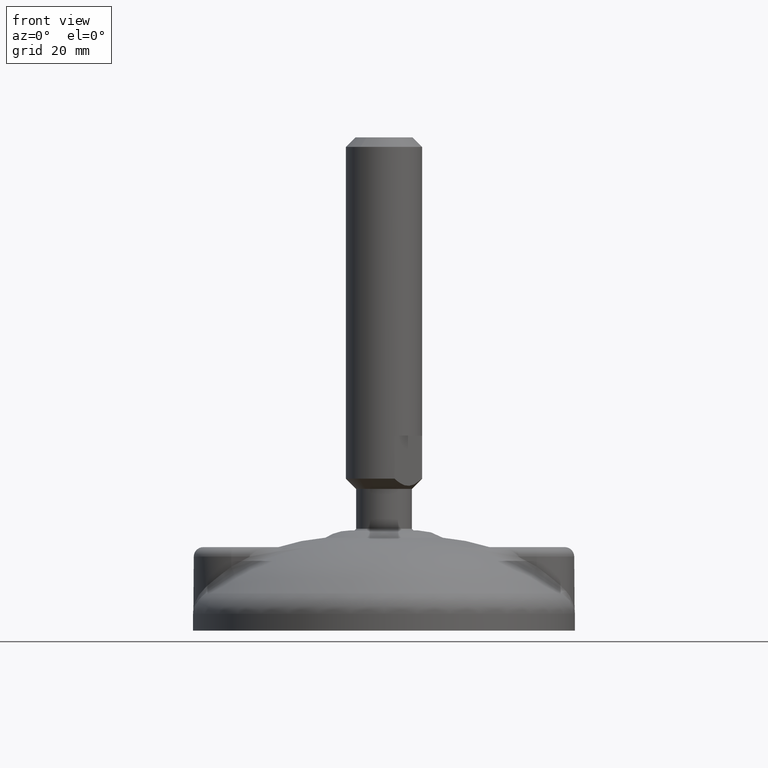
[diagram: clean part render]
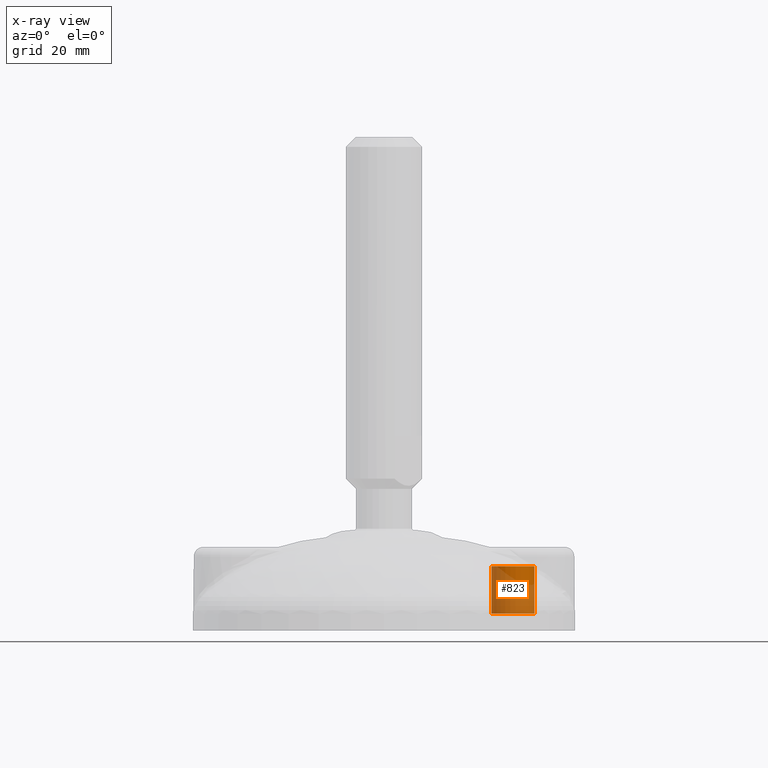
[diagram: x-ray — body ghosted, one internal face saturated and labeled with its STEP entity id]
A machine part, front view, then the same camera in x-ray: the body is ghosted and one INTERNAL B-rep face — a face not visible from any outside direction — is saturated and labeled: STEP entity #823.
In plain terms, the highlighted cylindrical surface (bore or boss wall) has radius 4.5 mm, axis along (0, 0, -1).
Its self-contained STEP definition (entity closure, byte-faithful):
#72=CYLINDRICAL_SURFACE('',#901,4.5);
#85=LINE('',#1221,#113);
#113=VECTOR('',#1006,4.5);
#146=FACE_OUTER_BOUND('',#197,.T.);
#197=EDGE_LOOP('',(#514,#515,#516,#517,#518,#519));
#247=CIRCLE('',#896,4.5);
#248=CIRCLE('',#897,4.5);
#249=CIRCLE('',#899,4.5);
#250=CIRCLE('',#900,4.5);
#306=VERTEX_POINT('',#1209);
#307=VERTEX_POINT('',#1210);
#308=VERTEX_POINT('',#1214);
#309=VERTEX_POINT('',#1215);
#385=EDGE_CURVE('',#306,#307,#247,.T.);
#386=EDGE_CURVE('',#307,#306,#248,.T.);
#387=EDGE_CURVE('',#308,#309,#249,.T.);
#389=EDGE_CURVE('',#309,#308,#250,.T.);
#390=EDGE_CURVE('',#307,#309,#85,.T.);
#514=ORIENTED_EDGE('',*,*,#385,.F.);
#515=ORIENTED_EDGE('',*,*,#386,.F.);
#516=ORIENTED_EDGE('',*,*,#390,.T.);
#517=ORIENTED_EDGE('',*,*,#387,.F.);
#518=ORIENTED_EDGE('',*,*,#389,.F.);
#519=ORIENTED_EDGE('',*,*,#390,.F.);
#823=ADVANCED_FACE('',(#146),#72,.F.);
#896=AXIS2_PLACEMENT_3D('',#1211,#993,#994);
#897=AXIS2_PLACEMENT_3D('',#1212,#995,#996);
#899=AXIS2_PLACEMENT_3D('',#1216,#999,#1000);
#900=AXIS2_PLACEMENT_3D('',#1219,#1002,#1003);
#901=AXIS2_PLACEMENT_3D('',#1220,#1004,#1005);
#993=DIRECTION('center_axis',(0.,0.,1.));
#994=DIRECTION('ref_axis',(-1.,0.,0.));
#995=DIRECTION('center_axis',(0.,0.,1.));
#996=DIRECTION('ref_axis',(-1.,0.,0.));
#999=DIRECTION('center_axis',(0.,0.,-1.));
#1000=DIRECTION('ref_axis',(-1.,0.,0.));
#1002=DIRECTION('center_axis',(0.,0.,-1.));
#1003=DIRECTION('ref_axis',(-1.,0.,0.));
#1004=DIRECTION('center_axis',(0.,0.,-1.));
#1005=DIRECTION('ref_axis',(-1.,0.,0.));
#1006=DIRECTION('',(0.,0.,1.));
#1209=CARTESIAN_POINT('',(22.5,0.,0.));
#1210=CARTESIAN_POINT('',(31.5,-5.51091059616309E-16,0.));
#1211=CARTESIAN_POINT('Origin',(27.,0.,0.));
#1212=CARTESIAN_POINT('Origin',(27.,0.,0.));
#1214=CARTESIAN_POINT('',(22.5,0.,10.));
#1215=CARTESIAN_POINT('',(31.5,-5.51091059616309E-16,10.));
#1216=CARTESIAN_POINT('Origin',(27.,0.,10.));
#1219=CARTESIAN_POINT('Origin',(27.,0.,10.));
#1220=CARTESIAN_POINT('Origin',(27.,0.,5.));
#1221=CARTESIAN_POINT('',(31.5,-5.51091059616309E-16,5.));